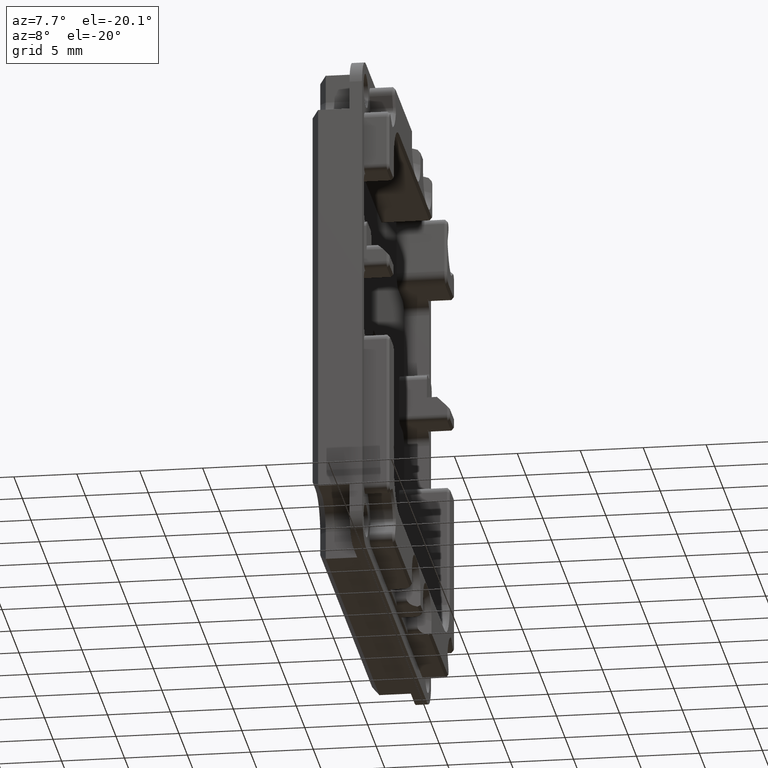
[diagram: clean part render]
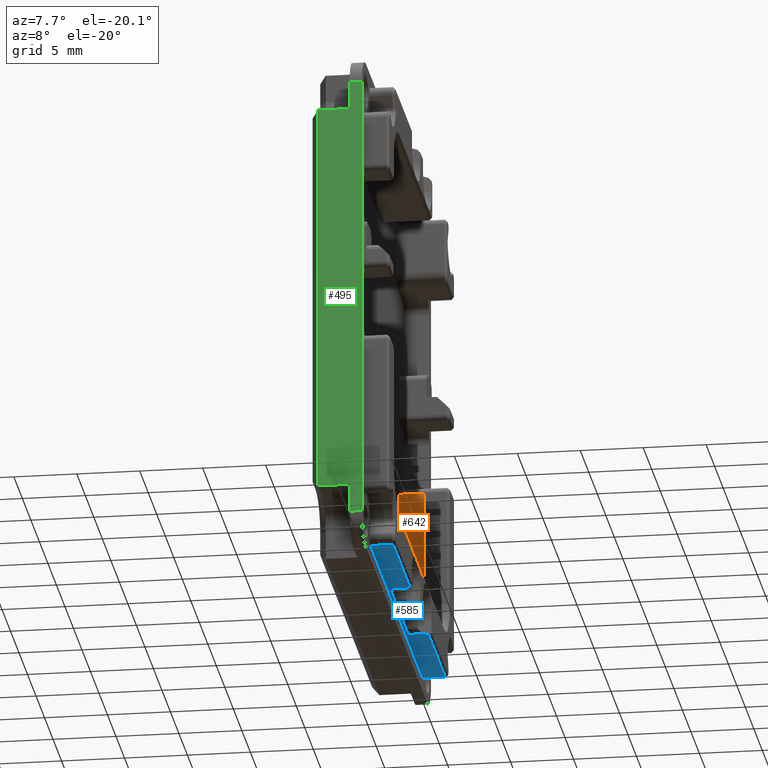
[diagram: same view with three faces highlighted in distinct colors, each labeled with its STEP entity id]
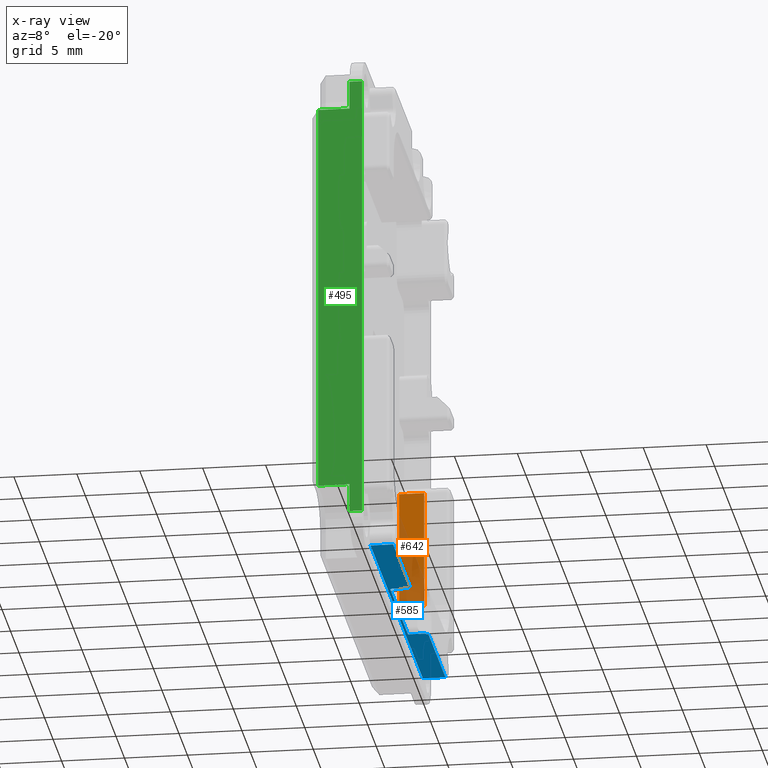
[diagram: x-ray of the same camera — body ghosted, the three highlighted faces saturated]
A machine part, auxiliary view with three faces highlighted in distinct colors.
The next image is the same camera in x-ray (body ghosted, the three faces saturated) — at least one of them is partly hidden behind the body in this view.
Their STEP definitions:

[orange] entity #642 — the highlighted planar face has unit normal (0, -1, 0).
#642=ADVANCED_FACE('',(#1020),#3679,.T.);
#1020=FACE_OUTER_BOUND('',#1430,.F.);
#1430=EDGE_LOOP('',(#2627,#2628,#2629,#2630));
#2627=ORIENTED_EDGE('',*,*,#6568,.T.);
#2628=ORIENTED_EDGE('',*,*,#6611,.F.);
#2629=ORIENTED_EDGE('',*,*,#6278,.F.);
#2630=ORIENTED_EDGE('',*,*,#6612,.T.);
#3679=PLANE('',#9299);
#6278=EDGE_CURVE('',#8494,#8493,#7117,.T.);
#6568=EDGE_CURVE('',#8302,#8303,#7300,.T.);
#6611=EDGE_CURVE('',#8493,#8303,#7342,.T.);
#6612=EDGE_CURVE('',#8494,#8302,#7343,.T.);
#7117=LINE('',#12601,#7796);
#7300=LINE('',#12891,#7979);
#7342=LINE('',#12934,#8021);
#7343=LINE('',#12935,#8022);
#7796=VECTOR('',#10004,9.44462172096553);
#7979=VECTOR('',#10401,9.444621720962);
#8021=VECTOR('',#10445,2.);
#8022=VECTOR('',#10446,2.);
#8302=VERTEX_POINT('',#11592);
#8303=VERTEX_POINT('',#11593);
#8493=VERTEX_POINT('',#11783);
#8494=VERTEX_POINT('',#11784);
#9299=AXIS2_PLACEMENT_3D('',#13359,#11073,#11074);
#10004=DIRECTION('',(0.,0.,1.));
#10401=DIRECTION('',(0.,0.,1.));
#10445=DIRECTION('',(-1.,0.,0.));
#10446=DIRECTION('',(-1.,0.,0.));
#11073=DIRECTION('',(0.,-1.,0.));
#11074=DIRECTION('',(0.,0.,1.));
#11592=CARTESIAN_POINT('',(-2.,16.2500001027218,-12.7499958912292));
#11593=CARTESIAN_POINT('',(-2.,16.2500001027253,-3.30537417026677));
#11783=CARTESIAN_POINT('',(0.,16.2500001027254,-3.30537417026677));
#11784=CARTESIAN_POINT('',(0.,16.250000102722,-12.7499958912308));
#12601=CARTESIAN_POINT('',(0.,16.2500001027219,-12.7499958912323));
#12891=CARTESIAN_POINT('',(-2.,16.2500001027219,-12.7499958912288));
#12934=CARTESIAN_POINT('',(0.,16.2500001027258,-3.30537417026677));
#12935=CARTESIAN_POINT('',(0.,16.2500001027219,-12.7499958912288));
#13359=CARTESIAN_POINT('',(-2.09444621720962,16.2500001027219,-12.8444421084384));

[blue] entity #585 — the highlighted planar face has unit normal (0, 0, -1).
#585=ADVANCED_FACE('',(#963),#3647,.T.);
#963=FACE_OUTER_BOUND('',#1370,.F.);
#1370=EDGE_LOOP('',(#2243,#2244,#2245,#2246,#2247,#2248,#2249,#2250,#2251,
#2252,#2253,#2254,#2255,#2256,#2257,#2258,#2259,#2260,#2261,#2262));
#2243=ORIENTED_EDGE('',*,*,#6113,.F.);
#2244=ORIENTED_EDGE('',*,*,#6417,.F.);
#2245=ORIENTED_EDGE('',*,*,#6330,.T.);
#2246=ORIENTED_EDGE('',*,*,#5995,.T.);
#2247=ORIENTED_EDGE('',*,*,#6361,.F.);
#2248=ORIENTED_EDGE('',*,*,#6362,.F.);
#2249=ORIENTED_EDGE('',*,*,#6006,.T.);
#2250=ORIENTED_EDGE('',*,*,#6364,.F.);
#2251=ORIENTED_EDGE('',*,*,#6363,.F.);
#2252=ORIENTED_EDGE('',*,*,#5994,.T.);
#2253=ORIENTED_EDGE('',*,*,#6388,.T.);
#2254=ORIENTED_EDGE('',*,*,#5997,.T.);
#2255=ORIENTED_EDGE('',*,*,#6365,.F.);
#2256=ORIENTED_EDGE('',*,*,#6366,.F.);
#2257=ORIENTED_EDGE('',*,*,#6007,.T.);
#2258=ORIENTED_EDGE('',*,*,#6368,.F.);
#2259=ORIENTED_EDGE('',*,*,#6367,.F.);
#2260=ORIENTED_EDGE('',*,*,#5996,.T.);
#2261=ORIENTED_EDGE('',*,*,#6347,.T.);
#2262=ORIENTED_EDGE('',*,*,#6416,.T.);
#3647=PLANE('',#9242);
#5994=EDGE_CURVE('',#8818,#8736,#6943,.T.);
#5995=EDGE_CURVE('',#8833,#8820,#6944,.T.);
#5996=EDGE_CURVE('',#8814,#8832,#6945,.T.);
#5997=EDGE_CURVE('',#8733,#8816,#6946,.T.);
#6006=EDGE_CURVE('',#8722,#8721,#6955,.T.);
#6007=EDGE_CURVE('',#8720,#8719,#6956,.T.);
#6113=EDGE_CURVE('',#8618,#8617,#7010,.T.);
#6330=EDGE_CURVE('',#8476,#8833,#7152,.T.);
#6347=EDGE_CURVE('',#8832,#8459,#7159,.T.);
#6361=EDGE_CURVE('',#8445,#8820,#7168,.T.);
#6362=EDGE_CURVE('',#8722,#8445,#7169,.T.);
#6363=EDGE_CURVE('',#8818,#8444,#7170,.T.);
#6364=EDGE_CURVE('',#8444,#8721,#7171,.T.);
#6365=EDGE_CURVE('',#8443,#8816,#7172,.T.);
#6366=EDGE_CURVE('',#8720,#8443,#7173,.T.);
#6367=EDGE_CURVE('',#8814,#8442,#7174,.T.);
#6368=EDGE_CURVE('',#8442,#8719,#7175,.T.);
#6388=EDGE_CURVE('',#8736,#8733,#7195,.T.);
#6416=EDGE_CURVE('',#8459,#8617,#7223,.T.);
#6417=EDGE_CURVE('',#8476,#8618,#7224,.T.);
#6943=LINE('',#12317,#7622);
#6944=LINE('',#12318,#7623);
#6945=LINE('',#12319,#7624);
#6946=LINE('',#12320,#7625);
#6955=LINE('',#12329,#7634);
#6956=LINE('',#12330,#7635);
#7010=LINE('',#12436,#7689);
#7152=LINE('',#12653,#7831);
#7159=LINE('',#12670,#7838);
#7168=LINE('',#12684,#7847);
#7169=LINE('',#12685,#7848);
#7170=LINE('',#12686,#7849);
#7171=LINE('',#12687,#7850);
#7172=LINE('',#12688,#7851);
#7173=LINE('',#12689,#7852);
#7174=LINE('',#12690,#7853);
#7175=LINE('',#12691,#7854);
#7195=LINE('',#12711,#7874);
#7223=LINE('',#12739,#7902);
#7224=LINE('',#12740,#7903);
#7622=VECTOR('',#9610,0.424264067515859);
#7623=VECTOR('',#9611,0.42426406990734);
#7624=VECTOR('',#9612,0.424264067516559);
#7625=VECTOR('',#9613,0.424264069907734);
#7634=VECTOR('',#9622,2.99999999999864);
#7635=VECTOR('',#9623,3.00000000000127);
#7689=VECTOR('',#9781,30.6879455295715);
#7831=VECTOR('',#10073,9.78441779868687);
#7838=VECTOR('',#10100,9.80352773088575);
#7847=VECTOR('',#10119,1.300000022111);
#7848=VECTOR('',#10120,0.499999999154721);
#7849=VECTOR('',#10121,1.30000002380203);
#7850=VECTOR('',#10122,0.500000000845745);
#7851=VECTOR('',#10123,1.30000002211072);
#7852=VECTOR('',#10124,0.49999999915444);
#7853=VECTOR('',#10125,1.30000002380154);
#7854=VECTOR('',#10126,0.500000000845251);
#7874=VECTOR('',#10146,1.90000000000213);
#7902=VECTOR('',#10174,1.8);
#7903=VECTOR('',#10175,1.8);
#8442=VERTEX_POINT('',#11732);
#8443=VERTEX_POINT('',#11733);
#8444=VERTEX_POINT('',#11734);
#8445=VERTEX_POINT('',#11735);
#8459=VERTEX_POINT('',#11749);
#8476=VERTEX_POINT('',#11766);
#8617=VERTEX_POINT('',#11907);
#8618=VERTEX_POINT('',#11908);
#8719=VERTEX_POINT('',#12009);
#8720=VERTEX_POINT('',#12010);
#8721=VERTEX_POINT('',#12011);
#8722=VERTEX_POINT('',#12012);
#8733=VERTEX_POINT('',#12023);
#8736=VERTEX_POINT('',#12026);
#8814=VERTEX_POINT('',#12104);
#8816=VERTEX_POINT('',#12106);
#8818=VERTEX_POINT('',#12108);
#8820=VERTEX_POINT('',#12110);
#8832=VERTEX_POINT('',#12122);
#8833=VERTEX_POINT('',#12123);
#9242=AXIS2_PLACEMENT_3D('',#13302,#10959,#10960);
#9610=DIRECTION('',(0.70710678118655,0.707106781186545,0.));
#9611=DIRECTION('',(-0.707106781186547,0.707106781186547,0.));
#9612=DIRECTION('',(0.707106781186548,0.707106781186548,0.));
#9613=DIRECTION('',(-0.707106781186551,0.707106781186544,0.));
#9622=DIRECTION('',(0.,1.,0.));
#9623=DIRECTION('',(0.,1.,0.));
#9781=DIRECTION('',(0.,1.,0.));
#10073=DIRECTION('',(0.,1.,0.));
#10100=DIRECTION('',(0.,1.,0.));
#10119=DIRECTION('',(1.,0.,0.));
#10120=DIRECTION('',(0.,-1.,0.));
#10121=DIRECTION('',(-1.,0.,0.));
#10122=DIRECTION('',(0.,-1.,0.));
#10123=DIRECTION('',(1.,0.,0.));
#10124=DIRECTION('',(0.,-1.,0.));
#10125=DIRECTION('',(-1.,0.,0.));
#10126=DIRECTION('',(0.,-1.,0.));
#10146=DIRECTION('',(0.,1.,0.));
#10174=DIRECTION('',(-1.,0.,0.));
#10175=DIRECTION('',(-1.,0.,0.));
#10959=DIRECTION('',(0.,0.,-1.));
#10960=DIRECTION('',(0.,1.,0.));
#11732=CARTESIAN_POINT('',(0.200000000000001,5.24999996846444,-19.1499957221411));
#11733=CARTESIAN_POINT('',(0.200000000000001,1.2499999684641,-19.1499957221411));
#11734=CARTESIAN_POINT('',(0.200000000000001,-1.25000003153606,-19.1499957221411));
#11735=CARTESIAN_POINT('',(0.200000000000001,-5.25000003153618,-19.1499957221411));
#11749=CARTESIAN_POINT('',(1.79999999999966,15.3535276985039,-19.1499957221398));
#11766=CARTESIAN_POINT('',(1.80000000000001,-15.3344178310676,-19.1499957221411));
#11907=CARTESIAN_POINT('',(0.,15.3535276985039,-19.1499957221392));
#11908=CARTESIAN_POINT('',(0.,-15.3344178310676,-19.1499957221411));
#12009=CARTESIAN_POINT('',(0.200000000000003,4.7499999676194,-19.1499957215743));
#12010=CARTESIAN_POINT('',(0.200000000000003,1.74999996761854,-19.1499957226993));
#12011=CARTESIAN_POINT('',(0.200000000000002,-1.75000003238214,-19.149995721573));
#12012=CARTESIAN_POINT('',(0.200000000000002,-4.75000003238146,-19.1499957227008));
#12023=CARTESIAN_POINT('',(1.7999999999997,0.949999967619158,-19.1499957221408));
#12026=CARTESIAN_POINT('',(1.79999999999972,-0.950000032382383,-19.1499957221408));
#12104=CARTESIAN_POINT('',(1.50000001614945,5.24999997611654,-19.1499957221411));
#12106=CARTESIAN_POINT('',(1.50000001445863,1.24999996081201,-19.1499957221411));
#12108=CARTESIAN_POINT('',(1.50000001614994,-1.25000002388396,-19.1499957221411));
#12110=CARTESIAN_POINT('',(1.50000001445891,-5.25000003918827,-19.1499957221411));
#12122=CARTESIAN_POINT('',(1.79999999999965,5.54999996761848,-19.1499957221408));
#12123=CARTESIAN_POINT('',(1.79999999999977,-5.55000003238099,-19.1499957221409));
#12317=CARTESIAN_POINT('',(1.50000000084575,-1.25000003153606,-19.1499957221411));
#12318=CARTESIAN_POINT('',(1.80000000000001,-5.55000003238146,-19.1499957221411));
#12319=CARTESIAN_POINT('',(1.50000000084526,5.24999996846444,-19.1499957221411));
#12320=CARTESIAN_POINT('',(1.80000000000001,0.949999967618544,-19.1499957221411));
#12329=CARTESIAN_POINT('',(0.200000000000001,-4.75000003238146,-19.1499957221411));
#12330=CARTESIAN_POINT('',(0.200000000000001,1.74999996761854,-19.1499957221411));
#12436=CARTESIAN_POINT('',(0.,-15.3344178310676,-19.1499957221411));
#12653=CARTESIAN_POINT('',(1.8,-15.3344178310676,-19.1499957221411));
#12670=CARTESIAN_POINT('',(1.8,5.54999996761812,-19.1499957221411));
#12684=CARTESIAN_POINT('',(0.200000000000001,-5.25000003153618,-19.1499957221411));
#12685=CARTESIAN_POINT('',(0.200000000000001,-4.75000003238146,-19.1499957221411));
#12686=CARTESIAN_POINT('',(1.50000002380203,-1.25000003153606,-19.1499957221411));
#12687=CARTESIAN_POINT('',(0.200000000000001,-1.25000003153606,-19.1499957221411));
#12688=CARTESIAN_POINT('',(0.200000000000001,1.2499999684641,-19.1499957221411));
#12689=CARTESIAN_POINT('',(0.200000000000001,1.74999996761854,-19.1499957221411));
#12690=CARTESIAN_POINT('',(1.50000002380155,5.24999996846444,-19.1499957221411));
#12691=CARTESIAN_POINT('',(0.200000000000002,5.24999996846444,-19.1499957221411));
#12711=CARTESIAN_POINT('',(1.80000000000001,-0.95000003238267,-19.1499957221411));
#12739=CARTESIAN_POINT('',(1.8,15.3535276985039,-19.1499957221392));
#12740=CARTESIAN_POINT('',(1.80000000000001,-15.3344178310676,-19.1499957221411));
#13302=CARTESIAN_POINT('',(-0.306879455295714,-15.6412972863633,-19.1499957221412));

[green] entity #495 — the highlighted planar face has unit normal (0, -1, 0).
#495=ADVANCED_FACE('',(#873),#3600,.T.);
#873=FACE_OUTER_BOUND('',#1276,.F.);
#1276=EDGE_LOOP('',(#1815,#1816,#1817,#1818,#1819,#1820,#1821,#1822));
#1815=ORIENTED_EDGE('',*,*,#6156,.F.);
#1816=ORIENTED_EDGE('',*,*,#6173,.T.);
#1817=ORIENTED_EDGE('',*,*,#6185,.F.);
#1818=ORIENTED_EDGE('',*,*,#6178,.F.);
#1819=ORIENTED_EDGE('',*,*,#6186,.T.);
#1820=ORIENTED_EDGE('',*,*,#6165,.T.);
#1821=ORIENTED_EDGE('',*,*,#6163,.F.);
#1822=ORIENTED_EDGE('',*,*,#5966,.T.);
#3600=PLANE('',#9152);
#5966=EDGE_CURVE('',#8759,#8758,#6921,.T.);
#6156=EDGE_CURVE('',#8578,#8758,#7021,.T.);
#6163=EDGE_CURVE('',#8759,#8571,#7028,.T.);
#6165=EDGE_CURVE('',#8569,#8571,#7030,.T.);
#6173=EDGE_CURVE('',#8578,#8564,#7035,.T.);
#6178=EDGE_CURVE('',#8559,#8560,#7038,.T.);
#6185=EDGE_CURVE('',#8560,#8564,#7042,.T.);
#6186=EDGE_CURVE('',#8559,#8569,#7043,.T.);
#6921=LINE('',#12289,#7600);
#7021=LINE('',#12479,#7700);
#7028=LINE('',#12486,#7707);
#7030=LINE('',#12488,#7709);
#7035=LINE('',#12496,#7714);
#7038=LINE('',#12501,#7717);
#7042=LINE('',#12508,#7721);
#7043=LINE('',#12509,#7722);
#7600=VECTOR('',#9576,31.4999999188449);
#7700=VECTOR('',#9856,2.5);
#7707=VECTOR('',#9863,2.5);
#7709=VECTOR('',#9865,2.24999650753739);
#7714=VECTOR('',#9876,2.24999650753784);
#7717=VECTOR('',#9883,35.9999930150747);
#7721=VECTOR('',#9893,1.);
#7722=VECTOR('',#9894,1.);
#8559=VERTEX_POINT('',#11849);
#8560=VERTEX_POINT('',#11850);
#8564=VERTEX_POINT('',#11854);
#8569=VERTEX_POINT('',#11859);
#8571=VERTEX_POINT('',#11861);
#8578=VERTEX_POINT('',#11868);
#8758=VERTEX_POINT('',#12048);
#8759=VERTEX_POINT('',#12049);
#9152=AXIS2_PLACEMENT_3D('',#13212,#10779,#10780);
#9576=DIRECTION('',(0.,0.,1.));
#9856=DIRECTION('',(-1.,0.,0.));
#9863=DIRECTION('',(1.,0.,0.));
#9865=DIRECTION('',(0.,0.,1.));
#9876=DIRECTION('',(0.,0.,1.));
#9883=DIRECTION('',(0.,0.,1.));
#9893=DIRECTION('',(-1.,0.,0.));
#9894=DIRECTION('',(-1.,0.,0.));
#10779=DIRECTION('',(0.,-1.,0.));
#10780=DIRECTION('',(0.,0.,1.));
#11849=CARTESIAN_POINT('',(0.,-20.2499998972767,-17.9999964390568));
#11850=CARTESIAN_POINT('',(0.,-20.2499998972767,17.9999965760178));
#11854=CARTESIAN_POINT('',(-0.999999999999998,-20.2499998972767,17.9999965760178));
#11859=CARTESIAN_POINT('',(-0.999999999999995,-20.2499998972767,-17.9999964390567));
#11861=CARTESIAN_POINT('',(-0.999999999999996,-20.2499999243282,-15.7499999315194));
#11868=CARTESIAN_POINT('',(-0.999999999999998,-20.2499999387024,15.7500000684756));
#12048=CARTESIAN_POINT('',(-3.5,-20.249999897275,15.7500000684767));
#12049=CARTESIAN_POINT('',(-3.49999999763619,-20.2499999392934,-15.7499999126701));
#12289=CARTESIAN_POINT('',(-3.5,-20.2499998972767,-15.7499998503648));
#12479=CARTESIAN_POINT('',(-1.,-20.2499998972767,15.7500000684734));
#12486=CARTESIAN_POINT('',(-3.5,-20.2499998972767,-15.7499999315194));
#12488=CARTESIAN_POINT('',(-0.999999999999992,-20.2499998972767,-17.9999964390568));
#12496=CARTESIAN_POINT('',(-0.999999999999997,-20.2499998972767,15.7500000684801));
#12501=CARTESIAN_POINT('',(0.,-20.2499998972767,-17.9999964390568));
#12508=CARTESIAN_POINT('',(0.,-20.2499998972767,17.9999965760178));
#12509=CARTESIAN_POINT('',(0.,-20.2499998972767,-17.9999964390568));
#13212=CARTESIAN_POINT('',(0.359999930150748,-20.2499998972767,-18.3599963692075));